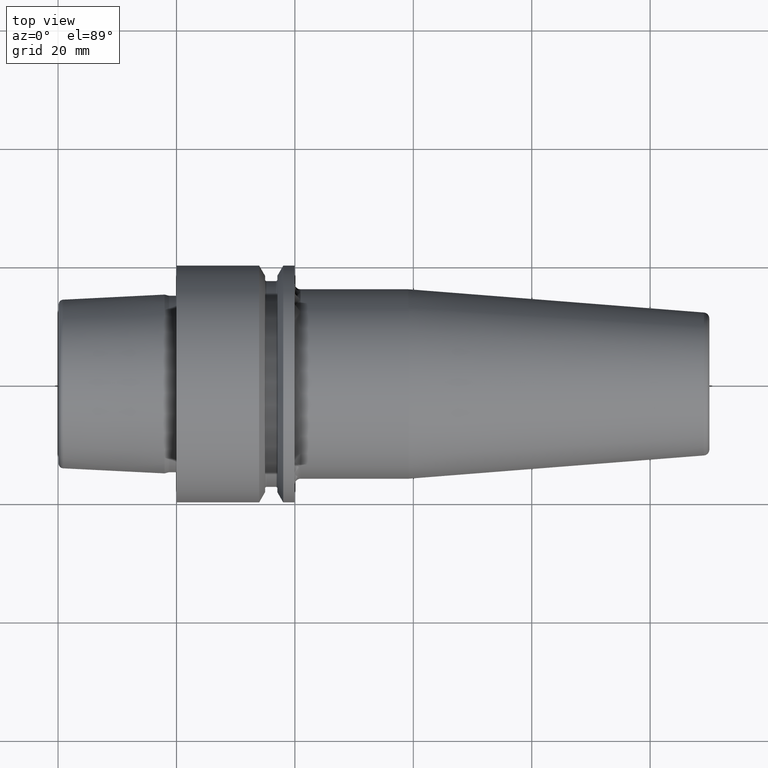
[diagram: clean part render]
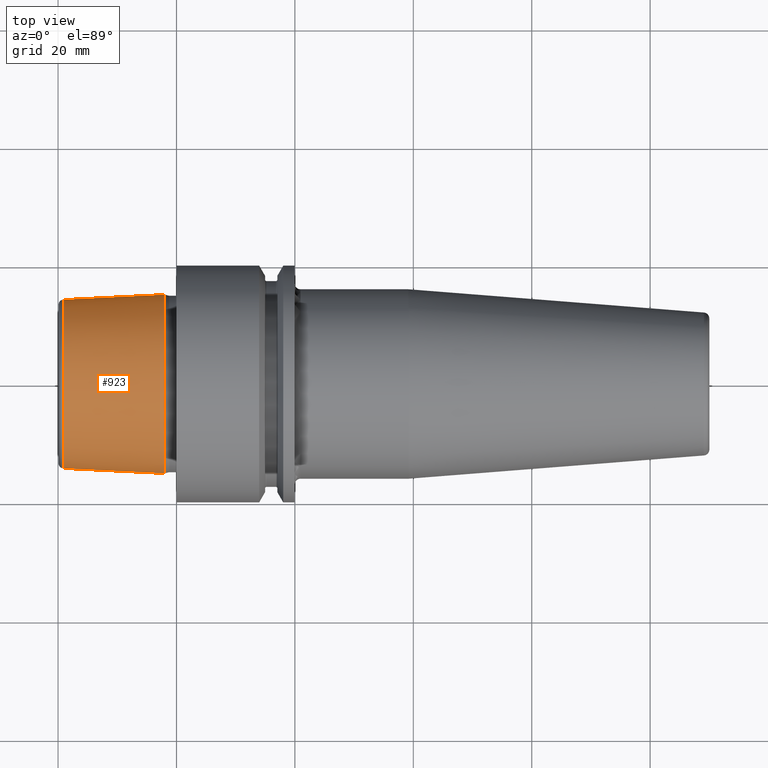
[diagram: same view with one face highlighted and labeled with its STEP entity id]
A machine part, top view. The second image highlights one B-rep face of the part: STEP entity #923.
In plain terms, the highlighted conical surface has half-angle 2.868 deg.
Its self-contained STEP definition (entity closure, byte-faithful):
#2=CARTESIAN_POINT('',(-2.E0,0.E0,0.E0));
#3=DIRECTION('',(1.E0,0.E0,0.E0));
#4=DIRECTION('',(0.E0,1.E0,0.E0));
#5=AXIS2_PLACEMENT_3D('',#2,#3,#4);
#30=DIRECTION('',(-9.987473526255E-1,-5.003724236654E-2,0.E0));
#31=VECTOR('',#30,1.716152713580E1);
#32=CARTESIAN_POINT('',(-2.E0,1.51037E1,0.E0));
#33=LINE('',#32,#31);
#34=DIRECTION('',(-9.987473526255E-1,5.003724236654E-2,0.E0));
#35=VECTOR('',#34,1.716152713580E1);
#36=CARTESIAN_POINT('',(-2.E0,-1.51037E1,0.E0));
#37=LINE('',#36,#35);
#53=CARTESIAN_POINT('',(-1.914002979389E1,0.E0,0.E0));
#54=DIRECTION('',(1.E0,0.E0,0.E0));
#55=DIRECTION('',(0.E0,1.E0,0.E0));
#56=AXIS2_PLACEMENT_3D('',#53,#54,#55);
#752=CARTESIAN_POINT('',(-2.E0,1.51037E1,0.E0));
#753=CARTESIAN_POINT('',(-2.E0,-1.51037E1,0.E0));
#754=VERTEX_POINT('',#752);
#755=VERTEX_POINT('',#753);
#756=CARTESIAN_POINT('',(-1.914002979389E1,1.424498450733E1,0.E0));
#757=VERTEX_POINT('',#756);
#758=CARTESIAN_POINT('',(-1.914002979389E1,-1.424498450733E1,0.E0));
#759=VERTEX_POINT('',#758);
#908=CARTESIAN_POINT('',(-1.057001489695E1,0.E0,0.E0));
#909=DIRECTION('',(1.E0,0.E0,0.E0));
#910=DIRECTION('',(0.E0,-1.E0,0.E0));
#911=AXIS2_PLACEMENT_3D('',#908,#909,#910);
#912=CONICAL_SURFACE('',#911,1.467434225366E1,2.868120487315E0);
#914=ORIENTED_EDGE('',*,*,#913,.T.);
#916=ORIENTED_EDGE('',*,*,#915,.T.);
#918=ORIENTED_EDGE('',*,*,#917,.F.);
#920=ORIENTED_EDGE('',*,*,#919,.F.);
#921=EDGE_LOOP('',(#914,#916,#918,#920));
#922=FACE_OUTER_BOUND('',#921,.F.);
#923=ADVANCED_FACE('',(#922),#912,.T.);
#6=CIRCLE('',#5,1.51037E1);
#57=CIRCLE('',#56,1.424498450733E1);
#913=EDGE_CURVE('',#754,#755,#6,.T.);
#915=EDGE_CURVE('',#755,#759,#37,.T.);
#917=EDGE_CURVE('',#757,#759,#57,.T.);
#919=EDGE_CURVE('',#754,#757,#33,.T.);